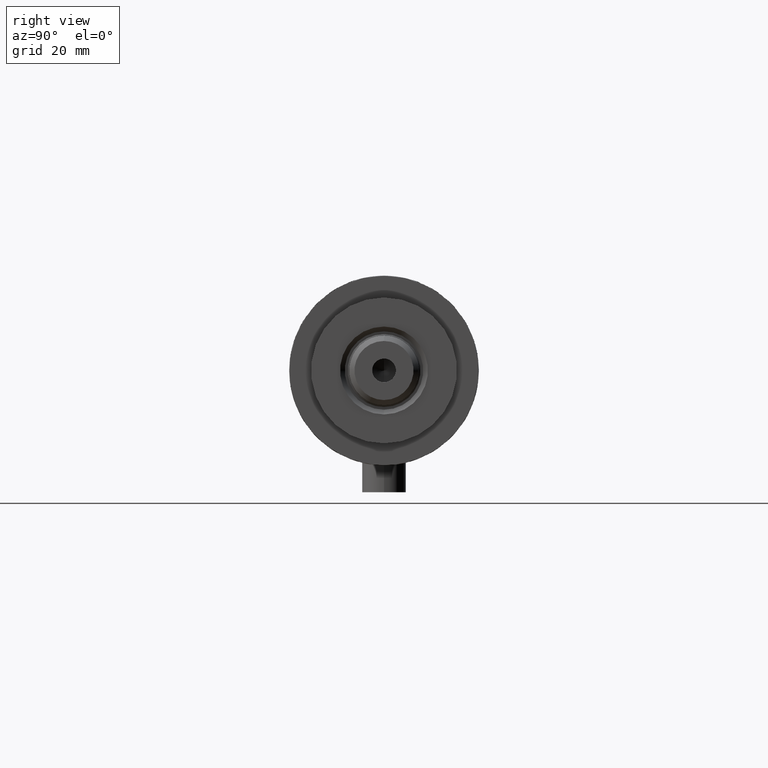
[diagram: clean part render]
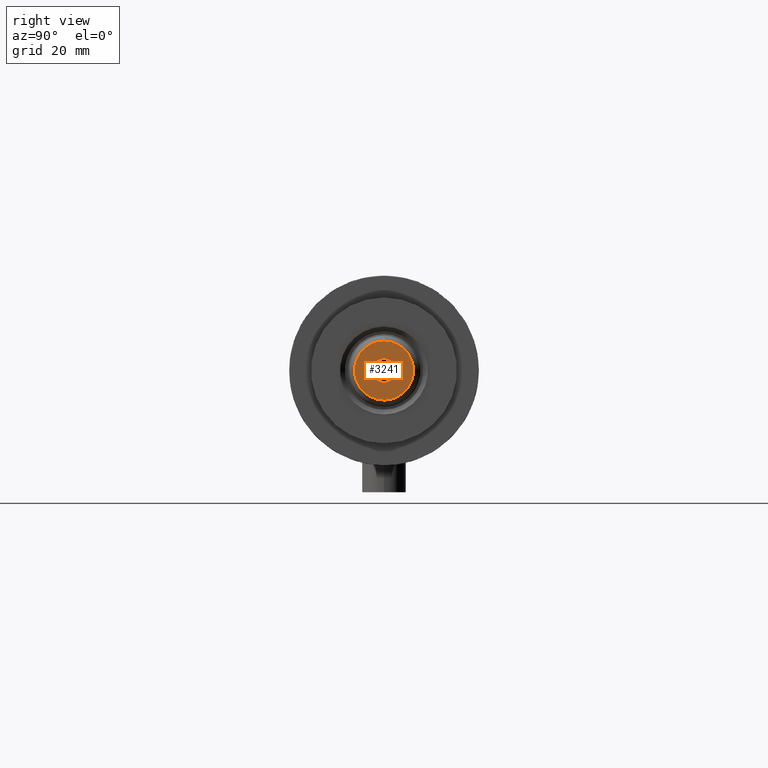
[diagram: same view with one face highlighted and labeled with its STEP entity id]
A machine part, right view. The second image highlights one B-rep face of the part: STEP entity #3241.
In plain terms, the highlighted planar face has unit normal (1, 0, -0).
Its self-contained STEP definition (entity closure, byte-faithful):
#60 = DIRECTION ( 'NONE',  ( 0.000000000000000000, 0.000000000000000000, 1.000000000000000000 ) ) ;
#130 = AXIS2_PLACEMENT_3D ( 'NONE', #4639, #882, #1702 ) ;
#197 = VERTEX_POINT ( 'NONE', #585 ) ;
#306 = VERTEX_POINT ( 'NONE', #2214 ) ;
#330 = CIRCLE ( 'NONE', #2448, 3.249999999999998224 ) ;
#449 = FACE_OUTER_BOUND ( 'NONE', #2529, .T. ) ;
#472 = CARTESIAN_POINT ( 'NONE',  ( 0.000000000000000000, 0.000000000000000000, 149.6000000000000227 ) ) ;
#474 = PLANE ( 'NONE',  #2576 ) ;
#495 = DIRECTION ( 'NONE',  ( 1.000000000000000000, 0.000000000000000000, 0.000000000000000000 ) ) ;
#585 = CARTESIAN_POINT ( 'NONE',  ( -3.249999999999998224, 3.980102097228895766E-16, 149.6000000000000227 ) ) ;
#692 = DIRECTION ( 'NONE',  ( 1.000000000000000000, 0.000000000000000000, 0.000000000000000000 ) ) ;
#819 = AXIS2_PLACEMENT_3D ( 'NONE', #4483, #3266, #692 ) ;
#882 = DIRECTION ( 'NONE',  ( 0.000000000000000000, 0.000000000000000000, 1.000000000000000000 ) ) ;
#890 = ORIENTED_EDGE ( 'NONE', *, *, #997, .F. ) ;
#997 = EDGE_CURVE ( 'NONE', #197, #306, #4190, .T. ) ;
#1124 = AXIS2_PLACEMENT_3D ( 'NONE', #472, #1990, #495 ) ;
#1185 = DIRECTION ( 'NONE',  ( 1.000000000000000000, 0.000000000000000000, -0.000000000000000000 ) ) ;
#1527 = CARTESIAN_POINT ( 'NONE',  ( 0.000000000000000000, 0.000000000000000000, 149.6000000000000227 ) ) ;
#1702 = DIRECTION ( 'NONE',  ( 1.000000000000000000, 0.000000000000000000, 0.000000000000000000 ) ) ;
#1819 = EDGE_LOOP ( 'NONE', ( #2383, #890 ) ) ;
#1887 = VERTEX_POINT ( 'NONE', #3312 ) ;
#1990 = DIRECTION ( 'NONE',  ( -0.000000000000000000, -0.000000000000000000, 1.000000000000000000 ) ) ;
#2214 = CARTESIAN_POINT ( 'NONE',  ( 3.249999999999998224, 0.000000000000000000, 149.6000000000000227 ) ) ;
#2252 = CIRCLE ( 'NONE', #130, 8.099999999999981881 ) ;
#2370 = EDGE_CURVE ( 'NONE', #306, #197, #330, .T. ) ;
#2383 = ORIENTED_EDGE ( 'NONE', *, *, #2370, .F. ) ;
#2448 = AXIS2_PLACEMENT_3D ( 'NONE', #3370, #2642, #4862 ) ;
#2529 = EDGE_LOOP ( 'NONE', ( #4206, #3249 ) ) ;
#2576 = AXIS2_PLACEMENT_3D ( 'NONE', #1527, #60, #1185 ) ;
#2642 = DIRECTION ( 'NONE',  ( -0.000000000000000000, -0.000000000000000000, 1.000000000000000000 ) ) ;
#2741 = FACE_BOUND ( 'NONE', #1819, .T. ) ;
#2955 = CIRCLE ( 'NONE', #819, 8.099999999999981881 ) ;
#3241 = ADVANCED_FACE ( 'NONE', ( #449, #2741 ), #474, .T. ) ;
#3249 = ORIENTED_EDGE ( 'NONE', *, *, #3727, .T. ) ;
#3266 = DIRECTION ( 'NONE',  ( 0.000000000000000000, 0.000000000000000000, 1.000000000000000000 ) ) ;
#3312 = CARTESIAN_POINT ( 'NONE',  ( 8.099999999999981881, 1.077689183249669619E-15, 149.6000000000000227 ) ) ;
#3370 = CARTESIAN_POINT ( 'NONE',  ( 0.000000000000000000, 0.000000000000000000, 149.6000000000000227 ) ) ;
#3438 = VERTEX_POINT ( 'NONE', #3992 ) ;
#3727 = EDGE_CURVE ( 'NONE', #1887, #3438, #2252, .T. ) ;
#3992 = CARTESIAN_POINT ( 'NONE',  ( -8.099999999999981881, 0.000000000000000000, 149.6000000000000227 ) ) ;
#4190 = CIRCLE ( 'NONE', #1124, 3.249999999999998224 ) ;
#4206 = ORIENTED_EDGE ( 'NONE', *, *, #4438, .T. ) ;
#4438 = EDGE_CURVE ( 'NONE', #3438, #1887, #2955, .T. ) ;
#4483 = CARTESIAN_POINT ( 'NONE',  ( 0.000000000000000000, 0.000000000000000000, 149.6000000000000227 ) ) ;
#4639 = CARTESIAN_POINT ( 'NONE',  ( 0.000000000000000000, 0.000000000000000000, 149.6000000000000227 ) ) ;
#4862 = DIRECTION ( 'NONE',  ( 1.000000000000000000, 0.000000000000000000, 0.000000000000000000 ) ) ;